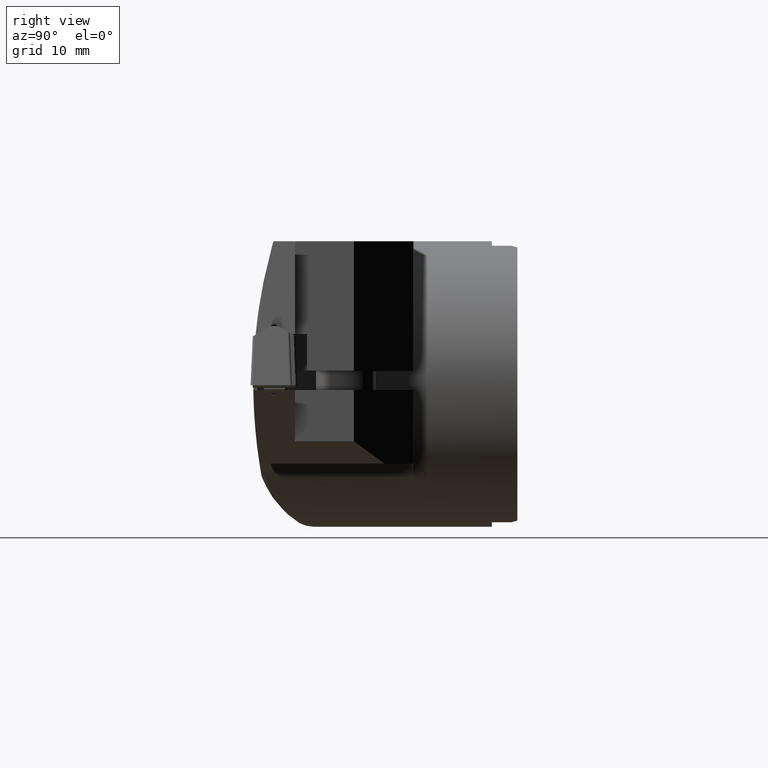
[diagram: clean part render]
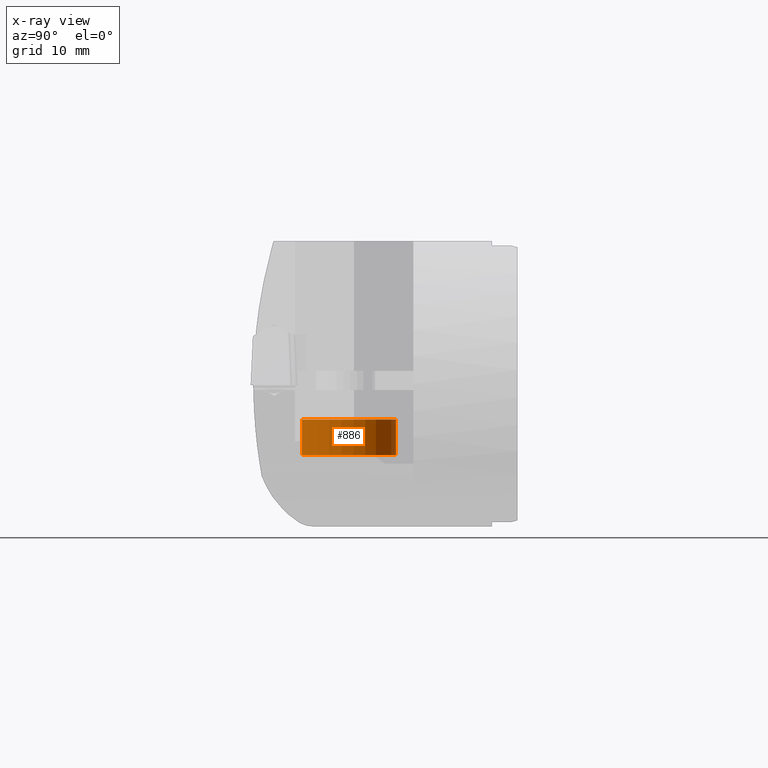
[diagram: x-ray — body ghosted, one internal face saturated and labeled with its STEP entity id]
A machine part, right view, then the same camera in x-ray: the body is ghosted and one INTERNAL B-rep face — a face not visible from any outside direction — is saturated and labeled: STEP entity #886.
In plain terms, the highlighted cylindrical surface (partial cylindrical patch) has radius 4.25 mm, axis along (0, 0, -1).
Its self-contained STEP definition (entity closure, byte-faithful):
#804=VERTEX_POINT('NONE',#2275);
#886=ADVANCED_FACE('NONE',(#2359),#2360,.T.);
#1096=EDGE_CURVE('NONE',#1838,#804,#2595,.T.);
#1132=VERTEX_POINT('NONE',#2633);
#1154=EDGE_CURVE('NONE',#1376,#1132,#2656,.T.);
#1376=VERTEX_POINT('NONE',#2898);
#1382=EDGE_CURVE('NONE',#1838,#1376,#2904,.T.);
#1838=VERTEX_POINT('NONE',#3413);
#2102=EDGE_CURVE('NONE',#1132,#804,#3703,.T.);
#2275=CARTESIAN_POINT('',(18.3750000000001,-10.769392033916,-6.0));
#2359=FACE_OUTER_BOUND('',#4067,.T.);
#2360=CYLINDRICAL_SURFACE('',#4068,4.25);
#2595=LINE('',#4544,#4545);
#2633=CARTESIAN_POINT('',(22.6250000000001,-18.1306079660837,-6.0));
#2656=LINE('',#4678,#4679);
#2898=CARTESIAN_POINT('',(22.6250000000001,-18.1306079660837,-3.0));
#2904=CIRCLE('',#5214,4.25);
#3413=CARTESIAN_POINT('',(18.3750000000001,-10.769392033916,-3.0));
#3703=CIRCLE('',#6724,4.25);
#4067=EDGE_LOOP('',(#7001,#7002,#7003,#7004));
#4068=AXIS2_PLACEMENT_3D('',#7005,#7006,#7007);
#4544=CARTESIAN_POINT('',(18.3750000000001,-10.769392033916,-29.0792492179353));
#4545=VECTOR('',#7323,1000.0);
#4678=CARTESIAN_POINT('',(22.6250000000001,-18.1306079660837,-29.0792492179353));
#4679=VECTOR('',#7366,1000.0);
#5214=AXIS2_PLACEMENT_3D('',#7622,#7623,#7624);
#6724=AXIS2_PLACEMENT_3D('',#8476,#8477,#8478);
#7001=ORIENTED_EDGE('',*,*,#1096,.F.);
#7002=ORIENTED_EDGE('',*,*,#1382,.T.);
#7003=ORIENTED_EDGE('',*,*,#1154,.T.);
#7004=ORIENTED_EDGE('',*,*,#2102,.T.);
#7005=CARTESIAN_POINT('',(20.5000000000001,-14.4499999999999,-29.0792492179353));
#7006=DIRECTION('',(2.50792477802524E-016,1.0720261361309E-015,-1.0));
#7007=DIRECTION('',(0.500000000000004,-0.866025403784436,-8.03005628508967E-016));
#7323=DIRECTION('',(2.50792477802524E-016,1.0720261361309E-015,-1.0));
#7366=DIRECTION('',(2.50792477802524E-016,1.0720261361309E-015,-1.0));
#7622=CARTESIAN_POINT('',(20.5000000000001,-14.4499999999999,-3.0));
#7623=DIRECTION('',(2.50792477802524E-016,1.0720261361309E-015,-1.0));
#7624=DIRECTION('',(0.500000000000004,-0.866025403784436,-8.03005628508967E-016));
#8476=CARTESIAN_POINT('',(20.5000000000001,-14.4499999999999,-6.0));
#8477=DIRECTION('',(-2.50792477802524E-016,-1.0720261361309E-015,1.0));
#8478=DIRECTION('',(-0.500000000000004,0.866025403784436,8.03005628508967E-016));